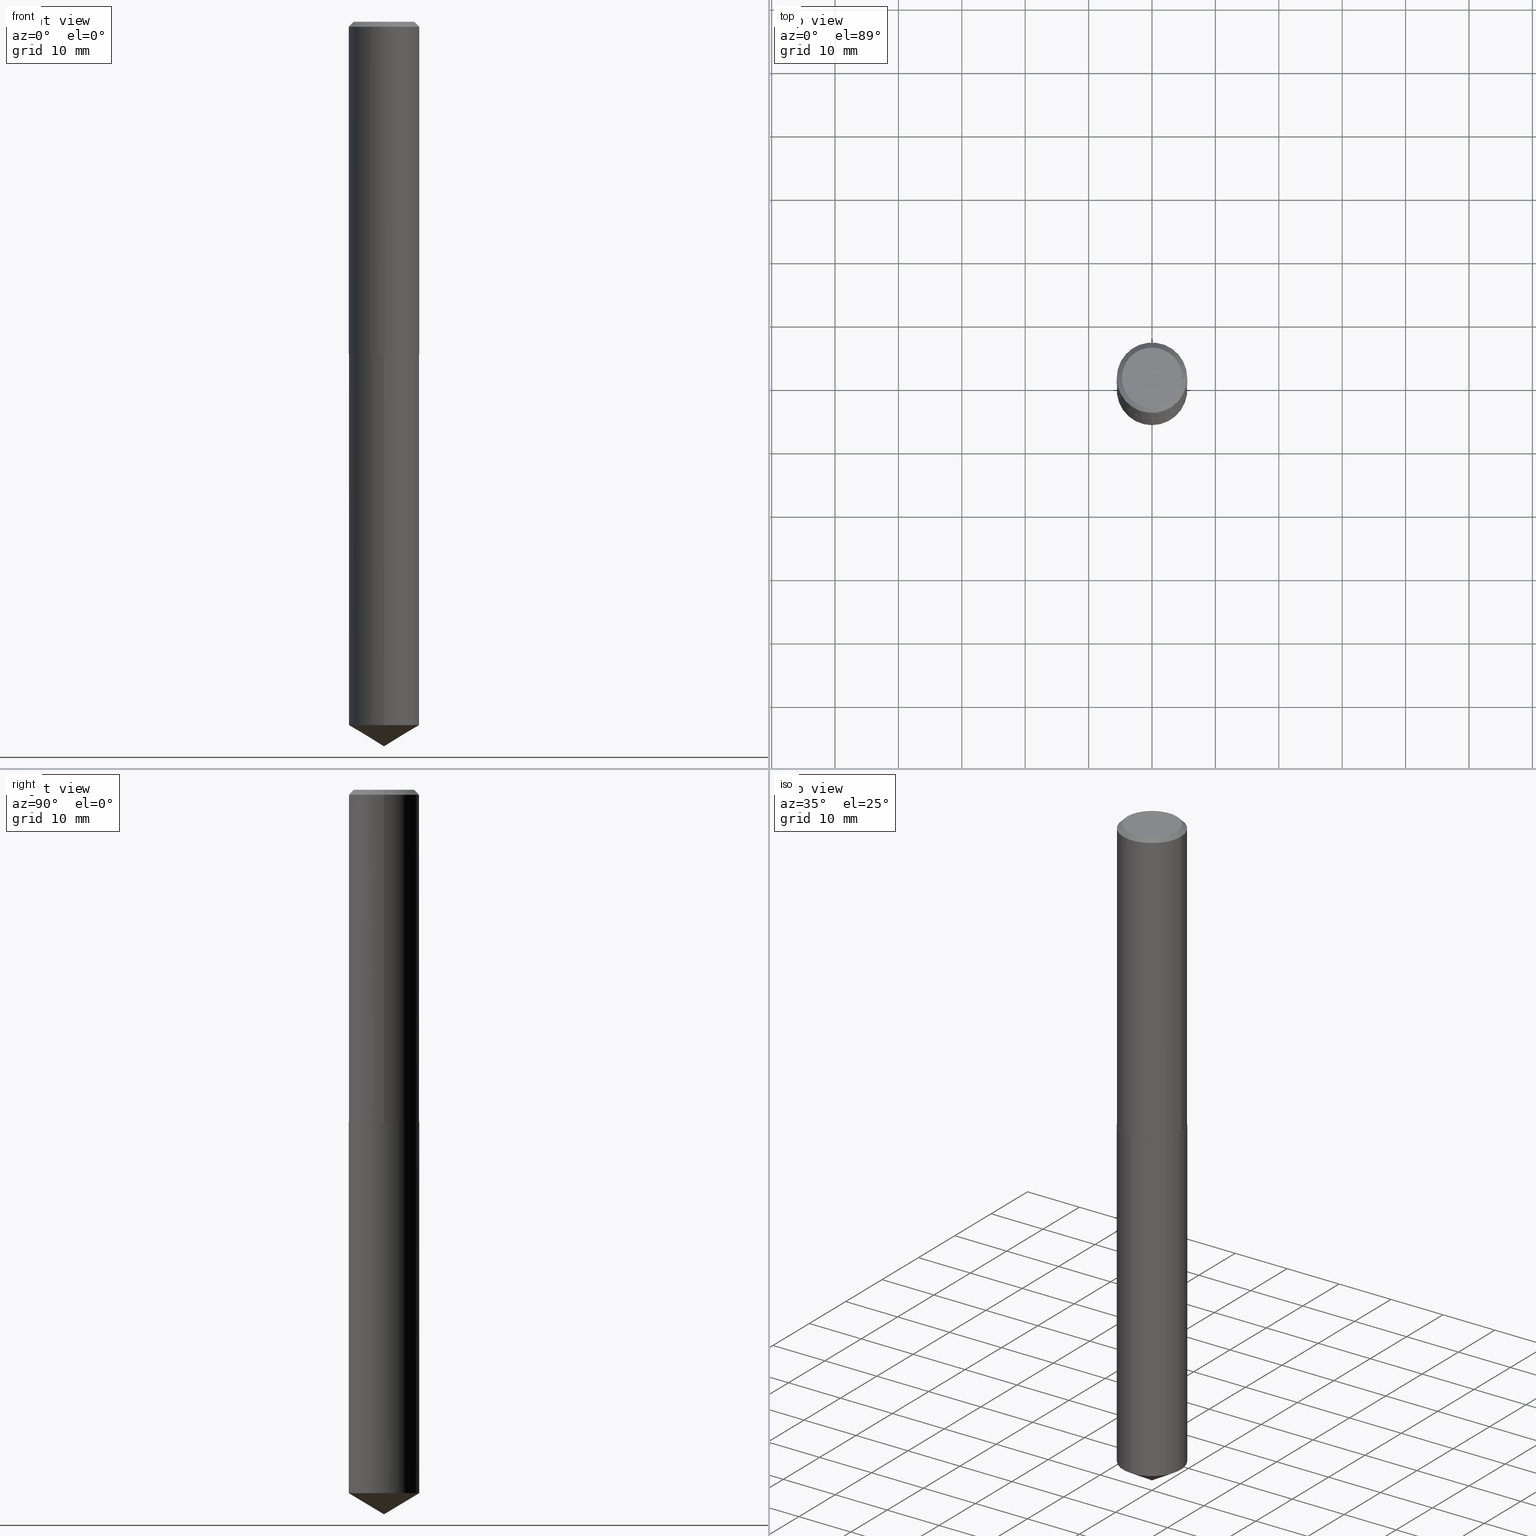
[diagram: canonical four-view strip — front | top / right | iso, engineering-drawing reading convention]
A machine part, canonical four-view strip (front | top / right | iso — engineering-drawing reading convention). The complete STEP part file that produces these views, byte-faithful:
ISO-10303-21;
HEADER;
FILE_DESCRIPTION (( 'STEP AP203' ),
    '1' );
FILE_NAME ('57209.STEP',
    '2024-04-23T00:03:11',
    ( '' ),
    ( '' ),
    'SwSTEP 2.0',
    'SolidWorks 2023',
    '' );
FILE_SCHEMA (( 'CONFIG_CONTROL_DESIGN' ));
ENDSEC;

DATA;
#1 = FACE_OUTER_BOUND ( 'NONE', #199, .T. ) ;
#2 = CARTESIAN_POINT ( 'NONE',  ( -0.1874999999999999722, 1.363859897985598178E-15, 9.552245033255873107E-19 ) ) ;
#3 = PERSON_AND_ORGANIZATION_ROLE ( 'creator' ) ;
#4 = FACE_OUTER_BOUND ( 'NONE', #64, .T. ) ;
#5 = VERTEX_POINT ( 'NONE', #350 ) ;
#6 = DATE_TIME_ROLE ( 'creation_date' ) ;
#7 = AXIS2_PLACEMENT_3D ( 'NONE', #56, #180, #362 ) ;
#8 = ORIENTED_EDGE ( 'NONE', *, *, #305, .T. ) ;
#9 = ORIENTED_EDGE ( 'NONE', *, *, #380, .F. ) ;
#10 = APPROVAL_STATUS ( 'not_yet_approved' ) ;
#11 = ORIENTED_EDGE ( 'NONE', *, *, #272, .T. ) ;
#12 = AXIS2_PLACEMENT_3D ( 'NONE', #106, #75, #18 ) ;
#13 = VERTEX_POINT ( 'NONE', #264 ) ;
#14 = DIRECTION ( 'NONE',  ( -2.445398546167742504E-29, 3.491581955187005662E-15, 1.000000000000000000 ) ) ;
#15 = EDGE_CURVE ( 'NONE', #5, #227, #275, .T. ) ;
#16 = CARTESIAN_POINT ( 'NONE',  ( 1.068301943811771508E-28, -1.525298381885563469E-14, -4.368561739587721426 ) ) ;
#17 = AXIS2_PLACEMENT_3D ( 'NONE', #16, #49, #357 ) ;
#18 = DIRECTION ( 'NONE',  ( -6.982962677686265133E-15, -1.000000000000000000, 3.746534391310989557E-15 ) ) ;
#19 = EDGE_CURVE ( 'NONE', #233, #200, #332, .T. ) ;
#20 =( NAMED_UNIT ( * ) PLANE_ANGLE_UNIT ( ) SI_UNIT ( $, .RADIAN. ) );
#21 = FACE_OUTER_BOUND ( 'NONE', #123, .T. ) ;
#22 = DIRECTION ( 'NONE',  ( -2.445468806185136597E-29, 3.491481338843145583E-15, 1.000000000000000000 ) ) ;
#23 = AXIS2_PLACEMENT_3D ( 'NONE', #87, #114, #187 ) ;
#24 = CYLINDRICAL_SURFACE ( 'NONE', #88, 0.2187500000000000833 ) ;
#25 = DIRECTION ( 'NONE',  ( 1.000000000000000000, -6.982962677686265133E-15, 0.000000000000000000 ) ) ;
#26 = CARTESIAN_POINT ( 'NONE',  ( 0.000000000000000000, 0.000000000000000000, 0.000000000000000000 ) ) ;
#27 = CARTESIAN_POINT ( 'NONE',  ( 0.000000000000000000, 0.000000000000000000, 0.000000000000000000 ) ) ;
#28 = CIRCLE ( 'NONE', #17, 0.2187500000000000000 ) ;
#29 = DIRECTION ( 'NONE',  ( 1.000000000000000000, -6.982962677686266711E-15, 4.876176775795935793E-29 ) ) ;
#30 = DIRECTION ( 'NONE',  ( 1.000000000000000000, 0.000000000000000000, 0.000000000000000000 ) ) ;
#31 = EDGE_CURVE ( 'NONE', #312, #222, #153, .T. ) ;
#32 = CARTESIAN_POINT ( 'NONE',  ( 7.642090019328598283E-31, -1.091087918388489651E-16, -0.03125000000000019429 ) ) ;
#33 = COORDINATED_UNIVERSAL_TIME_OFFSET ( 5, 0, .BEHIND. ) ;
#34 = VERTEX_POINT ( 'NONE', #293 ) ;
#35 = COORDINATED_UNIVERSAL_TIME_OFFSET ( 5, 0, .BEHIND. ) ;
#36 = CARTESIAN_POINT ( 'NONE',  ( 0.000000000000000000, 0.000000000000000000, 0.000000000000000000 ) ) ;
#37 = AXIS2_PLACEMENT_3D ( 'NONE', #36, #338, #374 ) ;
#38 = ORIENTED_EDGE ( 'NONE', *, *, #183, .T. ) ;
#39 = CARTESIAN_POINT ( 'NONE',  ( 1.100429345775484015E-28, -1.571211879834152765E-14, -4.500000000000000000 ) ) ;
#40 = ORIENTED_EDGE ( 'NONE', *, *, #219, .F. ) ;
#41 = CC_DESIGN_DATE_AND_TIME_ASSIGNMENT ( #122, #6, ( #167 ) ) ;
#42 = ORIENTED_EDGE ( 'NONE', *, *, #31, .T. ) ;
#43 = CARTESIAN_POINT ( 'NONE',  ( 7.642090019328598283E-31, -1.091087918388489651E-16, -0.03125000000000019429 ) ) ;
#44 = CONICAL_SURFACE ( 'NONE', #386, 65.52281426576865897, 1.029744258676656088 ) ;
#45 = CC_DESIGN_APPROVAL ( #104, ( #167 ) ) ;
#46 = ORIENTED_EDGE ( 'NONE', *, *, #69, .F. ) ;
#47 = PERSON ( 'UNSPECIFIED', 'UNSPECIFIED', 'UNSPECIFIED', ('UNSPECIFIED'), ('UNSPECIFIED'), ('UNSPECIFIED') ) ;
#48 = ORIENTED_EDGE ( 'NONE', *, *, #134, .T. ) ;
#49 = DIRECTION ( 'NONE',  ( -2.445398546167742504E-29, 3.491581955187005662E-15, 1.000000000000000000 ) ) ;
#50 = AXIS2_PLACEMENT_3D ( 'NONE', #247, #256, #130 ) ;
#51 = EDGE_CURVE ( 'NONE', #312, #13, #145, .T. ) ;
#52 = LENGTH_MEASURE_WITH_UNIT ( LENGTH_MEASURE( 0.02539999999999999897 ), #184 );
#53 = CARTESIAN_POINT ( 'NONE',  ( 7.642090019328598283E-31, -1.091087918388489651E-16, -0.03125000000000019429 ) ) ;
#54 = APPROVAL ( #10, 'UNSPECIFIED' ) ;
#55 = DIRECTION ( 'NONE',  ( -2.445398546167742504E-29, 3.491581955187005662E-15, 1.000000000000000000 ) ) ;
#56 = CARTESIAN_POINT ( 'NONE',  ( 5.042556678353752550E-29, -7.199434520694567863E-15, -2.062000000000000277 ) ) ;
#57 = CIRCLE ( 'NONE', #7, 0.2187500000000002220 ) ;
#58 = CARTESIAN_POINT ( 'NONE',  ( 5.042556678353752550E-29, -7.199434520694567863E-15, -2.062000000000000277 ) ) ;
#59 = FACE_OUTER_BOUND ( 'NONE', #266, .T. ) ;
#60 = DIRECTION ( 'NONE',  ( 6.982962677686265922E-15, 1.000000000000000000, -3.491581955187005662E-15 ) ) ;
#61 = EDGE_CURVE ( 'NONE', #34, #346, #268, .T. ) ;
#62 = PERSON_AND_ORGANIZATION ( #47, #170 ) ;
#63 = CLOSED_SHELL ( 'NONE', ( #291, #326, #212, #117, #235, #178, #335, #345 ) ) ;
#64 = EDGE_LOOP ( 'NONE', ( #372, #343 ) ) ;
#65 = CALENDAR_DATE ( 2024, 22, 4 ) ;
#66 = ORIENTED_EDGE ( 'NONE', *, *, #272, .F. ) ;
#67 = COORDINATED_UNIVERSAL_TIME_OFFSET ( 5, 0, .BEHIND. ) ;
#68 = PLANE ( 'NONE',  #50 ) ;
#69 = EDGE_CURVE ( 'NONE', #349, #346, #28, .T. ) ;
#70 = ORIENTED_EDGE ( 'NONE', *, *, #321, .F. ) ;
#71 = CALENDAR_DATE ( 2024, 22, 4 ) ;
#72 = DIRECTION ( 'NONE',  ( -2.445468806185136597E-29, 3.491481338843145583E-15, 1.000000000000000000 ) ) ;
#73 = ORIENTED_EDGE ( 'NONE', *, *, #377, .F. ) ;
#74 = ORIENTED_EDGE ( 'NONE', *, *, #360, .T. ) ;
#75 = DIRECTION ( 'NONE',  ( -2.445398546167742504E-29, 3.491581955187005662E-15, 1.000000000000000000 ) ) ;
#76 = EDGE_CURVE ( 'NONE', #200, #233, #339, .T. ) ;
#77 = CARTESIAN_POINT ( 'NONE',  ( 5.043779412756844791E-29, -7.201180261363988578E-15, -2.062500000000000000 ) ) ;
#78 = AXIS2_PLACEMENT_3D ( 'NONE', #32, #162, #98 ) ;
#79 = CC_DESIGN_APPROVAL ( #351, ( #290 ) ) ;
#80 = CARTESIAN_POINT ( 'NONE',  ( 0.2187500000000002220, -8.726957606438439495E-15, -2.062000000000000277 ) ) ;
#81 = EDGE_LOOP ( 'NONE', ( #195, #320, #139, #126 ) ) ;
#82 = DIRECTION ( 'NONE',  ( 0.7071067811865454633, -7.319954787623248157E-15, -0.7071067811865495711 ) ) ;
#83 = CONICAL_SURFACE ( 'NONE', #308, 0.2187500000000002220, 0.7853981633970383847 ) ;
#84 = DIRECTION ( 'NONE',  ( -6.982962677686265922E-15, -1.000000000000000000, 3.468864327941581987E-15 ) ) ;
#85 = FACE_OUTER_BOUND ( 'NONE', #81, .T. ) ;
#86 = EDGE_CURVE ( 'NONE', #5, #340, #201, .T. ) ;
#87 = CARTESIAN_POINT ( 'NONE',  ( 5.043779412756844791E-29, -7.201180261363988578E-15, -2.062500000000000000 ) ) ;
#88 = AXIS2_PLACEMENT_3D ( 'NONE', #26, #237, #29 ) ;
#89 = DIRECTION ( 'NONE',  ( -2.445398546167742504E-29, 3.491581955187005662E-15, 1.000000000000000000 ) ) ;
#90 = DIRECTION ( 'NONE',  ( 2.445468806185136597E-29, -3.491481338843145583E-15, -1.000000000000000000 ) ) ;
#91 = EDGE_CURVE ( 'NONE', #13, #340, #159, .T. ) ;
#92 = APPROVAL_ROLE ( '' ) ;
#93 = LINE ( 'NONE', #39, #181 ) ;
#94 = ORIENTED_EDGE ( 'NONE', *, *, #61, .F. ) ;
#95 = CC_DESIGN_PERSON_AND_ORGANIZATION_ASSIGNMENT ( #283, #371, ( #167 ) ) ;
#96 = ORIENTED_EDGE ( 'NONE', *, *, #51, .F. ) ;
#97 = PERSON_AND_ORGANIZATION_ROLE ( 'design_supplier' ) ;
#98 = DIRECTION ( 'NONE',  ( -1.000000000000000000, 6.982962677686266711E-15, 0.000000000000000000 ) ) ;
#99 = DIRECTION ( 'NONE',  ( 0.000000000000000000, 0.000000000000000000, 1.000000000000000000 ) ) ;
#100 = DIRECTION ( 'NONE',  ( -2.445398546167742784E-29, 3.491581955187005662E-15, 1.000000000000000000 ) ) ;
#101 = AXIS2_PLACEMENT_3D ( 'NONE', #172, #384, #329 ) ;
#102 = EDGE_LOOP ( 'NONE', ( #94, #74, #40 ) ) ;
#103 = FACE_OUTER_BOUND ( 'NONE', #288, .T. ) ;
#104 = APPROVAL ( #285, 'UNSPECIFIED' ) ;
#105 = DIRECTION ( 'NONE',  ( 1.000000000000000000, -6.982962677686266711E-15, 4.876179125272552877E-29 ) ) ;
#106 = CARTESIAN_POINT ( 'NONE',  ( 5.043779412756844791E-29, -7.201180261363988578E-15, -2.062500000000000000 ) ) ;
#107 = CIRCLE ( 'NONE', #141, 0.2182500000000007490 ) ;
#108 = DIRECTION ( 'NONE',  ( -2.438088387897960049E-29, 3.491481338843145188E-15, 1.000000000000000000 ) ) ;
#109 = CC_DESIGN_PERSON_AND_ORGANIZATION_ASSIGNMENT ( #342, #225, ( #149 ) ) ;
#110 = DIRECTION ( 'NONE',  ( -0.7071067811862576935, 7.493145998869306553E-15, 0.7071067811868373409 ) ) ;
#111 = AXIS2_PLACEMENT_3D ( 'NONE', #324, #14, #179 ) ;
#112 = CC_DESIGN_APPROVAL ( #54, ( #149 ) ) ;
#113 = CARTESIAN_POINT ( 'NONE',  ( -8.527109494464992917E-28, 1.217519452262931019E-13, 34.87007874015748143 ) ) ;
#114 = DIRECTION ( 'NONE',  ( -2.445398546167742504E-29, 3.491581955187005662E-15, 1.000000000000000000 ) ) ;
#115 = CARTESIAN_POINT ( 'NONE',  ( 5.043779412756844791E-29, -7.201180261363988578E-15, -2.062500000000000000 ) ) ;
#116 = VECTOR ( 'NONE', #336, 39.37007874015748143 ) ;
#117 = ADVANCED_FACE ( 'NONE', ( #103 ), #352, .F. ) ;
#118 = PLANE ( 'NONE',  #353 ) ;
#119 = CALENDAR_DATE ( 2024, 22, 4 ) ;
#120 = CYLINDRICAL_SURFACE ( 'NONE', #37, 0.2187500000000000833 ) ;
#121 = CC_DESIGN_DATE_AND_TIME_ASSIGNMENT ( #197, #156, ( #149 ) ) ;
#122 = DATE_AND_TIME ( #129, #258 ) ;
#123 = EDGE_LOOP ( 'NONE', ( #138, #191, #378, #9 ) ) ;
#124 = APPROVAL_PERSON_ORGANIZATION ( #157, #54, #192 ) ;
#125 = CARTESIAN_POINT ( 'NONE',  ( -1.527523085743763952E-15, -0.2187500000000152656, -4.368561739587721426 ) ) ;
#126 = ORIENTED_EDGE ( 'NONE', *, *, #134, .F. ) ;
#127 = MANIFOLD_SOLID_BREP ( 'Body-Move/Copy2[1]', #263 ) ;
#128 = CC_DESIGN_PERSON_AND_ORGANIZATION_ASSIGNMENT ( #190, #97, ( #290 ) ) ;
#129 = CALENDAR_DATE ( 2024, 22, 4 ) ;
#130 = DIRECTION ( 'NONE',  ( -1.000000000000000000, 6.982962677686265922E-15, -4.876176775795935793E-29 ) ) ;
#131 = EDGE_LOOP ( 'NONE', ( #96, #42, #310, #206 ) ) ;
#132 = APPROVAL_DATE_TIME ( #367, #54 ) ;
#133 = VECTOR ( 'NONE', #82, 39.37007874015748143 ) ;
#134 = EDGE_CURVE ( 'NONE', #232, #222, #297, .T. ) ;
#135 = CC_DESIGN_SECURITY_CLASSIFICATION ( #149, ( #290 ) ) ;
#136 = EDGE_LOOP ( 'NONE', ( #261, #73, #38, #284 ) ) ;
#137 = APPLICATION_CONTEXT ( 'configuration controlled 3d designs of mechanical parts and assemblies' ) ;
#138 = ORIENTED_EDGE ( 'NONE', *, *, #69, .T. ) ;
#139 = ORIENTED_EDGE ( 'NONE', *, *, #305, .F. ) ;
#140 = EDGE_CURVE ( 'NONE', #340, #13, #348, .T. ) ;
#141 = AXIS2_PLACEMENT_3D ( 'NONE', #238, #361, #304 ) ;
#142 = EDGE_LOOP ( 'NONE', ( #208, #174, #158, #234 ) ) ;
#143 = APPROVAL_PERSON_ORGANIZATION ( #313, #351, #92 ) ;
#144 = DESIGN_CONTEXT ( 'detailed design', #164, 'design' ) ;
#145 = LINE ( 'NONE', #325, #257 ) ;
#146 = DIRECTION ( 'NONE',  ( -2.445468806185136877E-29, 3.491481338843145188E-15, 1.000000000000000000 ) ) ;
#147 = DIRECTION ( 'NONE',  ( -2.445468806185136597E-29, 3.491481338843145583E-15, 1.000000000000000000 ) ) ;
#148 = CC_DESIGN_PERSON_AND_ORGANIZATION_ASSIGNMENT ( #194, #344, ( #254 ) ) ;
#149 = SECURITY_CLASSIFICATION ( '', '', #160 ) ;
#150 = CARTESIAN_POINT ( 'NONE',  ( -0.2187500000000002220, -5.645122286219346340E-15, -2.062000000000000277 ) ) ;
#151 = CARTESIAN_POINT ( 'NONE',  ( 1.068301943811771508E-28, -1.525298381885563469E-14, -4.368561739587721426 ) ) ;
#152 = LINE ( 'NONE', #241, #196 ) ;
#153 = CIRCLE ( 'NONE', #300, 0.2187500000000002220 ) ;
#154 = APPLICATION_PROTOCOL_DEFINITION ( 'international standard', 'config_control_design', 1994, #137 ) ;
#155 = CARTESIAN_POINT ( 'NONE',  ( -1.527523085743819961E-15, -0.2187500000000071887, -2.062499999999999556 ) ) ;
#156 = DATE_TIME_ROLE ( 'classification_date' ) ;
#157 = PERSON_AND_ORGANIZATION ( #47, #170 ) ;
#158 = ORIENTED_EDGE ( 'NONE', *, *, #140, .T. ) ;
#159 = CIRCLE ( 'NONE', #369, 0.2187500000000000000 ) ;
#160 = SECURITY_CLASSIFICATION_LEVEL ( 'unclassified' ) ;
#161 = CONICAL_SURFACE ( 'NONE', #175, 0.2187500000000000000, 0.7853981633974453924 ) ;
#162 = DIRECTION ( 'NONE',  ( 2.445468806185136597E-29, -3.491481338843145583E-15, -1.000000000000000000 ) ) ;
#163 = ORIENTED_EDGE ( 'NONE', *, *, #19, .T. ) ;
#164 = APPLICATION_CONTEXT ( 'configuration controlled 3d designs of mechanical parts and assemblies' ) ;
#165 = DATE_AND_TIME ( #249, #220 ) ;
#166 = CARTESIAN_POINT ( 'NONE',  ( -1.527523085743819961E-15, -0.2187500000000071887, -2.062499999999999556 ) ) ;
#167 = PRODUCT_DEFINITION ( 'UNKNOWN', '', #290, #144 ) ;
#168 = ORIENTED_EDGE ( 'NONE', *, *, #51, .T. ) ;
#169 = AXIS2_PLACEMENT_3D ( 'NONE', #151, #213, #388 ) ;
#170 = ORGANIZATION ( 'UNSPECIFIED', 'UNSPECIFIED', '' ) ;
#171 = ORIENTED_EDGE ( 'NONE', *, *, #360, .F. ) ;
#172 = CARTESIAN_POINT ( 'NONE',  ( 5.043779412756844791E-29, -7.201180261363988578E-15, -2.062500000000000000 ) ) ;
#173 = ADVANCED_FACE ( 'NONE', ( #21 ), #203, .T. ) ;
#174 = ORIENTED_EDGE ( 'NONE', *, *, #86, .T. ) ;
#175 = AXIS2_PLACEMENT_3D ( 'NONE', #331, #90, #216 ) ;
#176 = DIRECTION ( 'NONE',  ( 6.090539988449786324E-15, 0.8571673007021148871, 0.5150380749100498257 ) ) ;
#177 = DIRECTION ( 'NONE',  ( -2.445468806185136597E-29, 3.491481338843145583E-15, 1.000000000000000000 ) ) ;
#178 = ADVANCED_FACE ( 'NONE', ( #215 ), #24, .T. ) ;
#179 = DIRECTION ( 'NONE',  ( -6.982962677686265133E-15, -1.000000000000000000, 3.746534391310989557E-15 ) ) ;
#180 = DIRECTION ( 'NONE',  ( -2.445468806185136597E-29, 3.491481338843145583E-15, 1.000000000000000000 ) ) ;
#181 = VECTOR ( 'NONE', #250, 39.37007874015748143 ) ;
#182 = DIRECTION ( 'NONE',  ( -2.445468806185136597E-29, 3.491481338843145583E-15, 1.000000000000000000 ) ) ;
#183 = EDGE_CURVE ( 'NONE', #227, #13, #152, .T. ) ;
#184 =( LENGTH_UNIT ( ) NAMED_UNIT ( * ) SI_UNIT ( $, .METRE. ) );
#185 = DIRECTION ( 'NONE',  ( -0.7071067811865454633, 2.468850131082235367E-15, -0.7071067811865495711 ) ) ;
#186 = PERSON_AND_ORGANIZATION ( #47, #170 ) ;
#187 = DIRECTION ( 'NONE',  ( -6.982962677686265133E-15, -1.000000000000000000, 3.746534391310989557E-15 ) ) ;
#188 = AXIS2_PLACEMENT_3D ( 'NONE', #379, #327, #105 ) ;
#189 = VECTOR ( 'NONE', #204, 39.37007874015748143 ) ;
#190 = PERSON_AND_ORGANIZATION ( #47, #170 ) ;
#191 = ORIENTED_EDGE ( 'NONE', *, *, #390, .T. ) ;
#192 = APPROVAL_ROLE ( '' ) ;
#193 = EDGE_LOOP ( 'NONE', ( #375, #287, #314, #230 ) ) ;
#194 = PERSON_AND_ORGANIZATION ( #47, #170 ) ;
#195 = ORIENTED_EDGE ( 'NONE', *, *, #253, .T. ) ;
#196 = VECTOR ( 'NONE', #185, 39.37007874015748143 ) ;
#197 = DATE_AND_TIME ( #71, #302 ) ;
#198 = DIRECTION ( 'NONE',  ( 1.000000000000000000, -6.982962677686266711E-15, 4.876179125272552877E-29 ) ) ;
#199 = EDGE_LOOP ( 'NONE', ( #356, #11, #48, #281 ) ) ;
#200 = VERTEX_POINT ( 'NONE', #155 ) ;
#201 = LINE ( 'NONE', #322, #133 ) ;
#202 = CONICAL_SURFACE ( 'NONE', #295, 65.52281426576865897, 1.029744258676656088 ) ;
#203 = CYLINDRICAL_SURFACE ( 'NONE', #111, 0.2187500000000000000 ) ;
#204 = DIRECTION ( 'NONE',  ( -2.445398546167742784E-29, 3.491581955187005662E-15, 1.000000000000000000 ) ) ;
#205 = DIRECTION ( 'NONE',  ( -2.445468806185136597E-29, 3.491481338843145583E-15, 1.000000000000000000 ) ) ;
#206 = ORIENTED_EDGE ( 'NONE', *, *, #91, .F. ) ;
#207 = CONICAL_SURFACE ( 'NONE', #78, 0.2187500000000000000, 0.7853981633974453924 ) ;
#208 = ORIENTED_EDGE ( 'NONE', *, *, #15, .F. ) ;
#209 = ADVANCED_FACE ( 'NONE', ( #210 ), #330, .T. ) ;
#210 = FACE_OUTER_BOUND ( 'NONE', #193, .T. ) ;
#211 = FACE_OUTER_BOUND ( 'NONE', #102, .T. ) ;
#212 = ADVANCED_FACE ( 'NONE', ( #85 ), #83, .T. ) ;
#213 = DIRECTION ( 'NONE',  ( -2.445398546167742504E-29, 3.491581955187005662E-15, 1.000000000000000000 ) ) ;
#214 = LOCAL_TIME ( 20, 3, 11.00000000000000000, #33 ) ;
#215 = FACE_OUTER_BOUND ( 'NONE', #131, .T. ) ;
#216 = DIRECTION ( 'NONE',  ( -1.000000000000000000, 6.982962677686266711E-15, 0.000000000000000000 ) ) ;
#217 = VERTEX_POINT ( 'NONE', #333 ) ;
#218 = AXIS2_PLACEMENT_3D ( 'NONE', #58, #147, #365 ) ;
#219 = EDGE_CURVE ( 'NONE', #346, #349, #236, .T. ) ;
#220 = LOCAL_TIME ( 20, 3, 11.00000000000000000, #366 ) ;
#221 = APPROVAL_ROLE ( '' ) ;
#222 = VERTEX_POINT ( 'NONE', #270 ) ;
#223 = PRODUCT_DEFINITION_SHAPE ( 'NONE', 'NONE',  #167 ) ;
#224 = ORIENTED_EDGE ( 'NONE', *, *, #61, .T. ) ;
#225 = PERSON_AND_ORGANIZATION_ROLE ( 'classification_officer' ) ;
#226 = DIMENSIONAL_EXPONENTS ( 1.000000000000000000, 0.000000000000000000, 0.000000000000000000, 0.000000000000000000, 0.000000000000000000, 0.000000000000000000, 0.000000000000000000 ) ;
#227 = VERTEX_POINT ( 'NONE', #2 ) ;
#228 = LINE ( 'NONE', #354, #189 ) ;
#229 = DIRECTION ( 'NONE',  ( 1.000000000000000000, -6.982962677686265922E-15, 4.876176775795935793E-29 ) ) ;
#230 = ORIENTED_EDGE ( 'NONE', *, *, #19, .F. ) ;
#231 = CIRCLE ( 'NONE', #341, 0.1874999999999999722 ) ;
#232 = VERTEX_POINT ( 'NONE', #303 ) ;
#233 = VERTEX_POINT ( 'NONE', #385 ) ;
#234 = ORIENTED_EDGE ( 'NONE', *, *, #183, .F. ) ;
#235 = ADVANCED_FACE ( 'NONE', ( #1 ), #248, .T. ) ;
#236 = CIRCLE ( 'NONE', #169, 0.2187500000000000000 ) ;
#237 = DIRECTION ( 'NONE',  ( -2.445468806185136597E-29, 3.491481338843145583E-15, 1.000000000000000000 ) ) ;
#238 = CARTESIAN_POINT ( 'NONE',  ( 5.043779412756844791E-29, -7.201180261363988578E-15, -2.062500000000000000 ) ) ;
#239 = EDGE_CURVE ( 'NONE', #217, #312, #273, .T. ) ;
#240 = FACE_OUTER_BOUND ( 'NONE', #318, .T. ) ;
#241 = CARTESIAN_POINT ( 'NONE',  ( -0.2187500000000000000, 1.418414293905021742E-15, -0.03125000000000019429 ) ) ;
#242 = AXIS2_PLACEMENT_3D ( 'NONE', #77, #108, #229 ) ;
#243 = APPROVAL_PERSON_ORGANIZATION ( #186, #104, #221 ) ;
#244 = FACE_OUTER_BOUND ( 'NONE', #142, .T. ) ;
#245 = APPLICATION_PROTOCOL_DEFINITION ( 'international standard', 'config_control_design', 1994, #164 ) ;
#246 = ADVANCED_FACE ( 'NONE', ( #59 ), #44, .T. ) ;
#247 = CARTESIAN_POINT ( 'NONE',  ( -1.167985862904636054E-47, 1.667574263899817862E-33, 4.776122516674672132E-19 ) ) ;
#248 = CONICAL_SURFACE ( 'NONE', #218, 0.2187500000000002220, 0.7853981633970383847 ) ;
#249 = CALENDAR_DATE ( 2024, 22, 4 ) ;
#250 = DIRECTION ( 'NONE',  ( -5.985567269335949168E-15, -0.8571673007021112234, 0.5150380749100558209 ) ) ;
#251 = ORIENTED_EDGE ( 'NONE', *, *, #76, .T. ) ;
#252 = APPROVAL_STATUS ( 'not_yet_approved' ) ;
#253 = EDGE_CURVE ( 'NONE', #232, #217, #269, .T. ) ;
#254 = PRODUCT ( '57209', '57209', '', ( #311 ) ) ;
#255 =( NAMED_UNIT ( * ) SI_UNIT ( $, .STERADIAN. ) SOLID_ANGLE_UNIT ( ) );
#256 = DIRECTION ( 'NONE',  ( 2.438088387897960049E-29, -3.491481338843145188E-15, -1.000000000000000000 ) ) ;
#257 = VECTOR ( 'NONE', #146, 39.37007874015748143 ) ;
#258 = LOCAL_TIME ( 20, 3, 11.00000000000000000, #67 ) ;
#259 = ORIENTED_EDGE ( 'NONE', *, *, #140, .F. ) ;
#260 = ADVANCED_BREP_SHAPE_REPRESENTATION ( '57209', ( #127, #265, #382 ), #315 ) ;
#261 = ORIENTED_EDGE ( 'NONE', *, *, #86, .F. ) ;
#262 = CARTESIAN_POINT ( 'NONE',  ( 1.100458582172843864E-28, -1.571170375592310314E-14, -4.500000000000000000 ) ) ;
#263 = CLOSED_SHELL ( 'NONE', ( #173, #246, #282, #209, #276 ) ) ;
#264 = CARTESIAN_POINT ( 'NONE',  ( -0.2187500000000000000, -2.099959421791488142E-15, -0.03125000000000019429 ) ) ;
#265 = MANIFOLD_SOLID_BREP ( 'Body-Move/Copy2[2]', #63 ) ;
#266 = EDGE_LOOP ( 'NONE', ( #171, #224, #46 ) ) ;
#267 =( CONVERSION_BASED_UNIT ( 'INCH', #52 ) LENGTH_UNIT ( ) NAMED_UNIT ( #226 ) );
#268 = LINE ( 'NONE', #262, #289 ) ;
#269 = CIRCLE ( 'NONE', #323, 0.2182500000000007490 ) ;
#270 = CARTESIAN_POINT ( 'NONE',  ( 0.2187500000000002220, -8.726957606438439495E-15, -2.062000000000000277 ) ) ;
#271 = LINE ( 'NONE', #389, #116 ) ;
#272 = EDGE_CURVE ( 'NONE', #217, #232, #107, .T. ) ;
#273 = LINE ( 'NONE', #334, #363 ) ;
#274 = DIRECTION ( 'NONE',  ( -6.982962677686265922E-15, -1.000000000000000000, 3.468864327941581987E-15 ) ) ;
#275 = CIRCLE ( 'NONE', #188, 0.1874999999999999722 ) ;
#276 = ADVANCED_FACE ( 'NONE', ( #240 ), #118, .F. ) ;
#277 = SHAPE_DEFINITION_REPRESENTATION ( #223, #260 ) ;
#278 = CARTESIAN_POINT ( 'NONE',  ( 0.2187500000000000000, -1.636631877582719746E-15, -0.03125000000000019429 ) ) ;
#279 = CC_DESIGN_PERSON_AND_ORGANIZATION_ASSIGNMENT ( #62, #3, ( #290 ) ) ;
#280 = EDGE_LOOP ( 'NONE', ( #8, #168, #259, #70 ) ) ;
#281 = ORIENTED_EDGE ( 'NONE', *, *, #31, .F. ) ;
#282 = ADVANCED_FACE ( 'NONE', ( #211 ), #202, .T. ) ;
#283 = PERSON_AND_ORGANIZATION ( #47, #170 ) ;
#284 = ORIENTED_EDGE ( 'NONE', *, *, #91, .T. ) ;
#285 = APPROVAL_STATUS ( 'not_yet_approved' ) ;
#286 = FACE_OUTER_BOUND ( 'NONE', #280, .T. ) ;
#287 = ORIENTED_EDGE ( 'NONE', *, *, #219, .T. ) ;
#288 = EDGE_LOOP ( 'NONE', ( #347, #66 ) ) ;
#289 = VECTOR ( 'NONE', #176, 39.37007874015748854 ) ;
#290 = PRODUCT_DEFINITION_FORMATION_WITH_SPECIFIED_SOURCE ( 'ANY', '', #254, .NOT_KNOWN. ) ;
#291 = ADVANCED_FACE ( 'NONE', ( #244 ), #161, .T. ) ;
#292 = DIRECTION ( 'NONE',  ( 0.7071067811862576935, -2.468850131079221129E-15, 0.7071067811868373409 ) ) ;
#293 = CARTESIAN_POINT ( 'NONE',  ( 1.100429345775484015E-28, -1.571211879834152765E-14, -4.500000000000000000 ) ) ;
#294 = CARTESIAN_POINT ( 'NONE',  ( 5.042556678353752550E-29, -7.199434520694567863E-15, -2.062000000000000277 ) ) ;
#295 = AXIS2_PLACEMENT_3D ( 'NONE', #307, #89, #84 ) ;
#296 = UNCERTAINTY_MEASURE_WITH_UNIT (LENGTH_MEASURE( 1.000000000000000082E-05 ), #267, 'distance_accuracy_value', 'NONE');
#297 = LINE ( 'NONE', #80, #358 ) ;
#298 = DIRECTION ( 'NONE',  ( 1.000000000000000000, -6.982962677686266711E-15, 0.000000000000000000 ) ) ;
#299 = CARTESIAN_POINT ( 'NONE',  ( 5.042556678353752550E-29, -7.199434520694567863E-15, -2.062000000000000277 ) ) ;
#300 = AXIS2_PLACEMENT_3D ( 'NONE', #294, #205, #355 ) ;
#301 = DIRECTION ( 'NONE',  ( 1.000000000000000000, -6.982962677686267499E-15, 0.000000000000000000 ) ) ;
#302 = LOCAL_TIME ( 20, 3, 11.00000000000000000, #316 ) ;
#303 = CARTESIAN_POINT ( 'NONE',  ( 0.2182500000000007490, -8.725211865769021935E-15, -2.062500000000000000 ) ) ;
#304 = DIRECTION ( 'NONE',  ( 1.000000000000000000, -6.982962677686267499E-15, 0.000000000000000000 ) ) ;
#305 = EDGE_CURVE ( 'NONE', #222, #312, #57, .T. ) ;
#306 = APPROVAL_DATE_TIME ( #165, #104 ) ;
#307 = CARTESIAN_POINT ( 'NONE',  ( -8.527109494464992917E-28, 1.217519452262931019E-13, 34.87007874015748143 ) ) ;
#308 = AXIS2_PLACEMENT_3D ( 'NONE', #299, #22, #25 ) ;
#309 = APPROVAL_DATE_TIME ( #373, #351 ) ;
#310 = ORIENTED_EDGE ( 'NONE', *, *, #321, .T. ) ;
#311 = MECHANICAL_CONTEXT ( 'NONE', #137, 'mechanical' ) ;
#312 = VERTEX_POINT ( 'NONE', #150 ) ;
#313 = PERSON_AND_ORGANIZATION ( #47, #170 ) ;
#314 = ORIENTED_EDGE ( 'NONE', *, *, #380, .T. ) ;
#315 =( GEOMETRIC_REPRESENTATION_CONTEXT ( 3 ) GLOBAL_UNCERTAINTY_ASSIGNED_CONTEXT ( ( #296 ) ) GLOBAL_UNIT_ASSIGNED_CONTEXT ( ( #267, #20, #255 ) ) REPRESENTATION_CONTEXT ( 'NONE', 'WORKASPACE' ) );
#316 = COORDINATED_UNIVERSAL_TIME_OFFSET ( 5, 0, .BEHIND. ) ;
#317 = LINE ( 'NONE', #166, #370 ) ;
#318 = EDGE_LOOP ( 'NONE', ( #251, #163 ) ) ;
#319 = FACE_OUTER_BOUND ( 'NONE', #136, .T. ) ;
#320 = ORIENTED_EDGE ( 'NONE', *, *, #239, .T. ) ;
#321 = EDGE_CURVE ( 'NONE', #222, #340, #271, .T. ) ;
#322 = CARTESIAN_POINT ( 'NONE',  ( 0.2187500000000000000, -1.609842728851371433E-15, -0.03125000000000019429 ) ) ;
#323 = AXIS2_PLACEMENT_3D ( 'NONE', #115, #182, #301 ) ;
#324 = CARTESIAN_POINT ( 'NONE',  ( 5.043779412756844791E-29, -7.201180261363988578E-15, -2.062500000000000000 ) ) ;
#325 = CARTESIAN_POINT ( 'NONE',  ( -0.2187500000000000833, 1.554312234475219748E-15, -1.076017050993261043E-29 ) ) ;
#326 = ADVANCED_FACE ( 'NONE', ( #286 ), #120, .T. ) ;
#327 = DIRECTION ( 'NONE',  ( -2.445468806185136597E-29, 3.491481338843145583E-15, 1.000000000000000000 ) ) ;
#328 = AXIS2_PLACEMENT_3D ( 'NONE', #53, #177, #298 ) ;
#329 = DIRECTION ( 'NONE',  ( -6.982962677686265133E-15, -1.000000000000000000, 3.746534391310989557E-15 ) ) ;
#330 = CYLINDRICAL_SURFACE ( 'NONE', #23, 0.2187500000000000000 ) ;
#331 = CARTESIAN_POINT ( 'NONE',  ( 7.642090019328598283E-31, -1.091087918388489651E-16, -0.03125000000000019429 ) ) ;
#332 = CIRCLE ( 'NONE', #101, 0.2187500000000000000 ) ;
#333 = CARTESIAN_POINT ( 'NONE',  ( -0.2182500000000007490, -5.647771513393455963E-15, -2.062500000000000000 ) ) ;
#334 = CARTESIAN_POINT ( 'NONE',  ( -0.2187500000000002220, -5.645122286219346340E-15, -2.062000000000000277 ) ) ;
#335 = ADVANCED_FACE ( 'NONE', ( #319 ), #207, .T. ) ;
#336 = DIRECTION ( 'NONE',  ( -2.445468806185136877E-29, 3.491481338843145188E-15, 1.000000000000000000 ) ) ;
#337 = PRODUCT_RELATED_PRODUCT_CATEGORY ( 'detail', '', ( #254 ) ) ;
#338 = DIRECTION ( 'NONE',  ( -2.445468806185136597E-29, 3.491481338843145583E-15, 1.000000000000000000 ) ) ;
#339 = CIRCLE ( 'NONE', #12, 0.2187500000000000000 ) ;
#340 = VERTEX_POINT ( 'NONE', #278 ) ;
#341 = AXIS2_PLACEMENT_3D ( 'NONE', #376, #72, #198 ) ;
#342 = PERSON_AND_ORGANIZATION ( #47, #170 ) ;
#343 = ORIENTED_EDGE ( 'NONE', *, *, #15, .T. ) ;
#344 = PERSON_AND_ORGANIZATION_ROLE ( 'design_owner' ) ;
#345 = ADVANCED_FACE ( 'NONE', ( #4 ), #68, .F. ) ;
#346 = VERTEX_POINT ( 'NONE', #368 ) ;
#347 = ORIENTED_EDGE ( 'NONE', *, *, #253, .F. ) ;
#348 = CIRCLE ( 'NONE', #328, 0.2187500000000000000 ) ;
#349 = VERTEX_POINT ( 'NONE', #125 ) ;
#350 = CARTESIAN_POINT ( 'NONE',  ( 0.1874999999999999722, -1.448093051716766899E-15, 9.552245033445756318E-19 ) ) ;
#351 = APPROVAL ( #252, 'UNSPECIFIED' ) ;
#352 = PLANE ( 'NONE',  #242 ) ;
#353 = AXIS2_PLACEMENT_3D ( 'NONE', #359, #364, #60 ) ;
#354 = CARTESIAN_POINT ( 'NONE',  ( 1.554312234475269249E-15, 0.2187499999999927836, -2.062500000000000888 ) ) ;
#355 = DIRECTION ( 'NONE',  ( 1.000000000000000000, -6.982962677686265133E-15, 0.000000000000000000 ) ) ;
#356 = ORIENTED_EDGE ( 'NONE', *, *, #239, .F. ) ;
#357 = DIRECTION ( 'NONE',  ( -6.982962677686265133E-15, -1.000000000000000000, 2.497689594207326371E-15 ) ) ;
#358 = VECTOR ( 'NONE', #292, 39.37007874015748143 ) ;
#359 = CARTESIAN_POINT ( 'NONE',  ( 5.043779412756844791E-29, -7.201180261363988578E-15, -2.062500000000000000 ) ) ;
#360 = EDGE_CURVE ( 'NONE', #34, #349, #93, .T. ) ;
#361 = DIRECTION ( 'NONE',  ( -2.445468806185136597E-29, 3.491481338843145583E-15, 1.000000000000000000 ) ) ;
#362 = DIRECTION ( 'NONE',  ( 1.000000000000000000, -6.982962677686265133E-15, 0.000000000000000000 ) ) ;
#363 = VECTOR ( 'NONE', #110, 39.37007874015748143 ) ;
#364 = DIRECTION ( 'NONE',  ( 2.445398546167742223E-29, -3.491581955187005662E-15, -1.000000000000000000 ) ) ;
#365 = DIRECTION ( 'NONE',  ( 1.000000000000000000, -6.982962677686265133E-15, 0.000000000000000000 ) ) ;
#366 = COORDINATED_UNIVERSAL_TIME_OFFSET ( 5, 0, .BEHIND. ) ;
#367 = DATE_AND_TIME ( #119, #214 ) ;
#368 = CARTESIAN_POINT ( 'NONE',  ( 1.554312234475325850E-15, 0.2187499999999847622, -4.368561739587722315 ) ) ;
#369 = AXIS2_PLACEMENT_3D ( 'NONE', #43, #381, #383 ) ;
#370 = VECTOR ( 'NONE', #100, 39.37007874015748143 ) ;
#371 = PERSON_AND_ORGANIZATION_ROLE ( 'creator' ) ;
#372 = ORIENTED_EDGE ( 'NONE', *, *, #377, .T. ) ;
#373 = DATE_AND_TIME ( #65, #387 ) ;
#374 = DIRECTION ( 'NONE',  ( 1.000000000000000000, -6.982962677686266711E-15, 4.876176775795935793E-29 ) ) ;
#375 = ORIENTED_EDGE ( 'NONE', *, *, #390, .F. ) ;
#376 = CARTESIAN_POINT ( 'NONE',  ( -2.335971725809272108E-47, 3.335148527799635725E-33, 9.552245033349344265E-19 ) ) ;
#377 = EDGE_CURVE ( 'NONE', #227, #5, #231, .T. ) ;
#378 = ORIENTED_EDGE ( 'NONE', *, *, #76, .F. ) ;
#379 = CARTESIAN_POINT ( 'NONE',  ( -2.335971725809272108E-47, 3.335148527799635725E-33, 9.552245033349344265E-19 ) ) ;
#380 = EDGE_CURVE ( 'NONE', #349, #200, #317, .T. ) ;
#381 = DIRECTION ( 'NONE',  ( -2.445468806185136597E-29, 3.491481338843145583E-15, 1.000000000000000000 ) ) ;
#382 = AXIS2_PLACEMENT_3D ( 'NONE', #27, #99, #30 ) ;
#383 = DIRECTION ( 'NONE',  ( 1.000000000000000000, -6.982962677686266711E-15, 0.000000000000000000 ) ) ;
#384 = DIRECTION ( 'NONE',  ( -2.445398546167742504E-29, 3.491581955187005662E-15, 1.000000000000000000 ) ) ;
#385 = CARTESIAN_POINT ( 'NONE',  ( 1.554312234475326047E-15, 0.2187499999999927836, -2.062500000000000888 ) ) ;
#386 = AXIS2_PLACEMENT_3D ( 'NONE', #113, #55, #274 ) ;
#387 = LOCAL_TIME ( 20, 3, 11.00000000000000000, #35 ) ;
#388 = DIRECTION ( 'NONE',  ( -6.982962677686265133E-15, -1.000000000000000000, 2.497689594207326371E-15 ) ) ;
#389 = CARTESIAN_POINT ( 'NONE',  ( 0.2187500000000000833, -1.527523085743871435E-15, 1.066663669705361305E-29 ) ) ;
#390 = EDGE_CURVE ( 'NONE', #346, #233, #228, .T. ) ;
ENDSEC;
END-ISO-10303-21;
